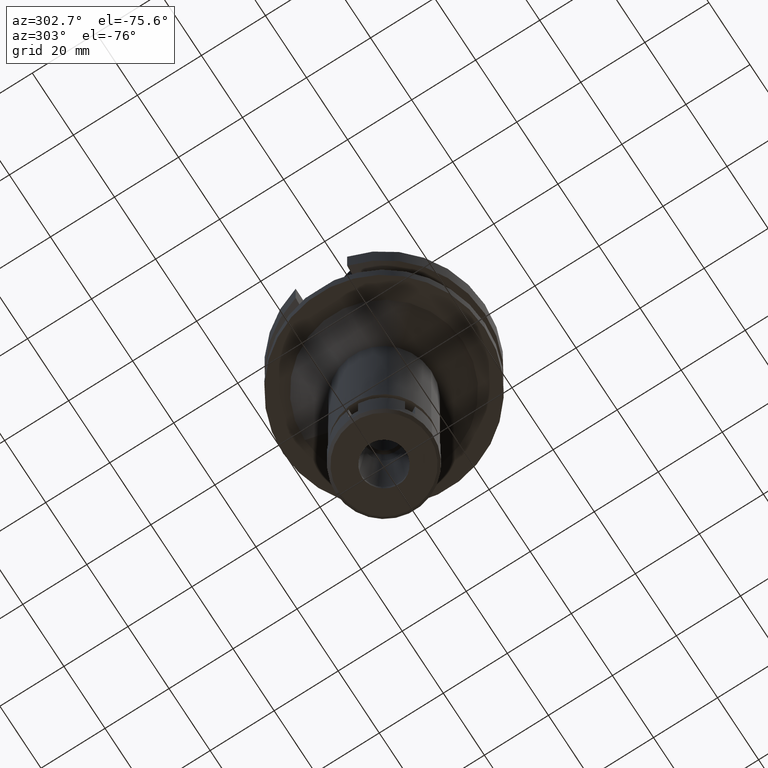
[diagram: clean part render]
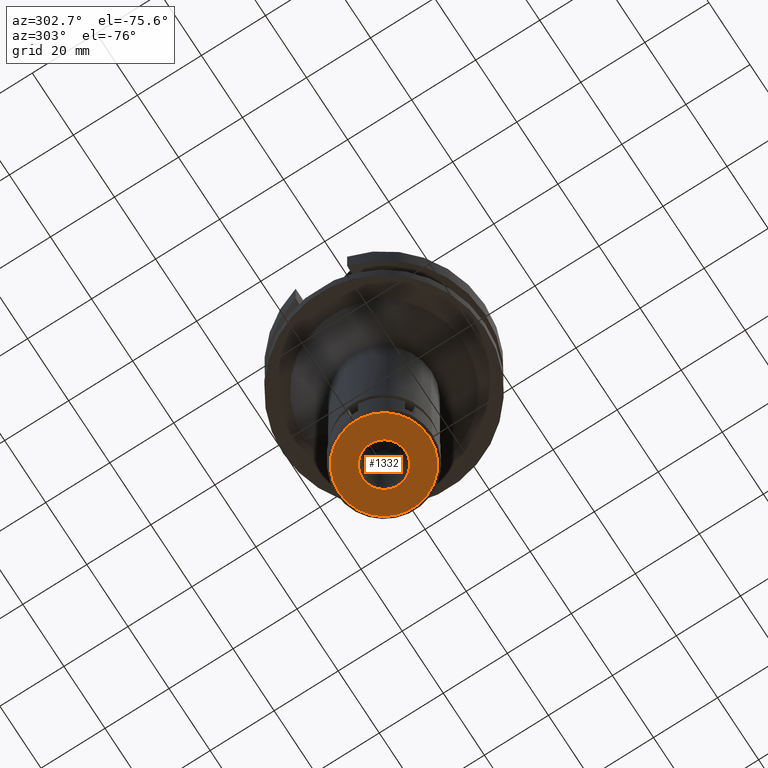
[diagram: same view with one face highlighted and labeled with its STEP entity id]
A machine part, auxiliary view. The second image highlights one B-rep face of the part: STEP entity #1332.
In plain terms, the highlighted planar face has unit normal (0, 0, -1).
Its self-contained STEP definition (entity closure, byte-faithful):
#232 = CARTESIAN_POINT ( 'NONE',  ( 0.0000000000000000000, 0.0000000000000000000, -12.50000000000000000 ) ) ;
#256 = ORIENTED_EDGE ( 'NONE', *, *, #2958, .F. ) ;
#383 = CARTESIAN_POINT ( 'NONE',  ( 0.0000000000000000000, 0.0000000000000000000, -12.50000000000000000 ) ) ;
#539 = VERTEX_POINT ( 'NONE', #2884 ) ;
#653 = DIRECTION ( 'NONE',  ( 0.0000000000000000000, -1.000000000000000000, 0.0000000000000000000 ) ) ;
#657 = CIRCLE ( 'NONE', #2371, 6.750000000000000000 ) ;
#763 = VERTEX_POINT ( 'NONE', #1841 ) ;
#764 = FACE_OUTER_BOUND ( 'NONE', #1682, .T. ) ;
#1024 = CARTESIAN_POINT ( 'NONE',  ( 0.0000000000000000000, 0.0000000000000000000, -12.50000000000000000 ) ) ;
#1234 = EDGE_CURVE ( 'NONE', #539, #763, #657, .T. ) ;
#1273 = EDGE_CURVE ( 'NONE', #1391, #2870, #3246, .T. ) ;
#1278 = CIRCLE ( 'NONE', #3036, 14.09999999999999964 ) ;
#1303 = DIRECTION ( 'NONE',  ( 0.0000000000000000000, 0.0000000000000000000, -1.000000000000000000 ) ) ;
#1332 = ADVANCED_FACE ( 'NONE', ( #764, #2478 ), #2513, .T. ) ;
#1391 = VERTEX_POINT ( 'NONE', #2298 ) ;
#1595 = AXIS2_PLACEMENT_3D ( 'NONE', #1611, #1919, #2441 ) ;
#1611 = CARTESIAN_POINT ( 'NONE',  ( 0.0000000000000000000, 0.0000000000000000000, -12.50000000000000000 ) ) ;
#1682 = EDGE_LOOP ( 'NONE', ( #2238, #3408 ) ) ;
#1841 = CARTESIAN_POINT ( 'NONE',  ( 0.0000000000000000000, 6.750000000000000000, -12.50000000000000000 ) ) ;
#1899 = EDGE_CURVE ( 'NONE', #2870, #1391, #1278, .T. ) ;
#1917 = EDGE_LOOP ( 'NONE', ( #256, #3087 ) ) ;
#1919 = DIRECTION ( 'NONE',  ( 0.0000000000000000000, 0.0000000000000000000, -1.000000000000000000 ) ) ;
#2094 = DIRECTION ( 'NONE',  ( 0.0000000000000000000, 1.000000000000000000, 0.0000000000000000000 ) ) ;
#2238 = ORIENTED_EDGE ( 'NONE', *, *, #1273, .F. ) ;
#2298 = CARTESIAN_POINT ( 'NONE',  ( 0.0000000000000000000, 14.09999999999999964, -12.50000000000000000 ) ) ;
#2371 = AXIS2_PLACEMENT_3D ( 'NONE', #2698, #1303, #2428 ) ;
#2428 = DIRECTION ( 'NONE',  ( 0.0000000000000000000, -1.000000000000000000, 0.0000000000000000000 ) ) ;
#2441 = DIRECTION ( 'NONE',  ( 0.0000000000000000000, -1.000000000000000000, 0.0000000000000000000 ) ) ;
#2478 = FACE_BOUND ( 'NONE', #1917, .T. ) ;
#2513 = PLANE ( 'NONE',  #1595 ) ;
#2589 = DIRECTION ( 'NONE',  ( 0.0000000000000000000, 0.0000000000000000000, 1.000000000000000000 ) ) ;
#2659 = DIRECTION ( 'NONE',  ( 0.0000000000000000000, 0.0000000000000000000, -1.000000000000000000 ) ) ;
#2698 = CARTESIAN_POINT ( 'NONE',  ( 0.0000000000000000000, 0.0000000000000000000, -12.50000000000000000 ) ) ;
#2720 = CARTESIAN_POINT ( 'NONE',  ( 0.0000000000000000000, -14.09999999999999964, -12.50000000000000000 ) ) ;
#2775 = DIRECTION ( 'NONE',  ( 0.0000000000000000000, 0.0000000000000000000, 1.000000000000000000 ) ) ;
#2818 = CIRCLE ( 'NONE', #3227, 6.750000000000000000 ) ;
#2870 = VERTEX_POINT ( 'NONE', #2720 ) ;
#2884 = CARTESIAN_POINT ( 'NONE',  ( 0.0000000000000000000, -6.750000000000000000, -12.50000000000000000 ) ) ;
#2958 = EDGE_CURVE ( 'NONE', #763, #539, #2818, .T. ) ;
#3009 = DIRECTION ( 'NONE',  ( 0.0000000000000000000, 1.000000000000000000, 0.0000000000000000000 ) ) ;
#3036 = AXIS2_PLACEMENT_3D ( 'NONE', #383, #2589, #653 ) ;
#3061 = AXIS2_PLACEMENT_3D ( 'NONE', #232, #2775, #3009 ) ;
#3087 = ORIENTED_EDGE ( 'NONE', *, *, #1234, .F. ) ;
#3227 = AXIS2_PLACEMENT_3D ( 'NONE', #1024, #2659, #2094 ) ;
#3246 = CIRCLE ( 'NONE', #3061, 14.09999999999999964 ) ;
#3408 = ORIENTED_EDGE ( 'NONE', *, *, #1899, .F. ) ;